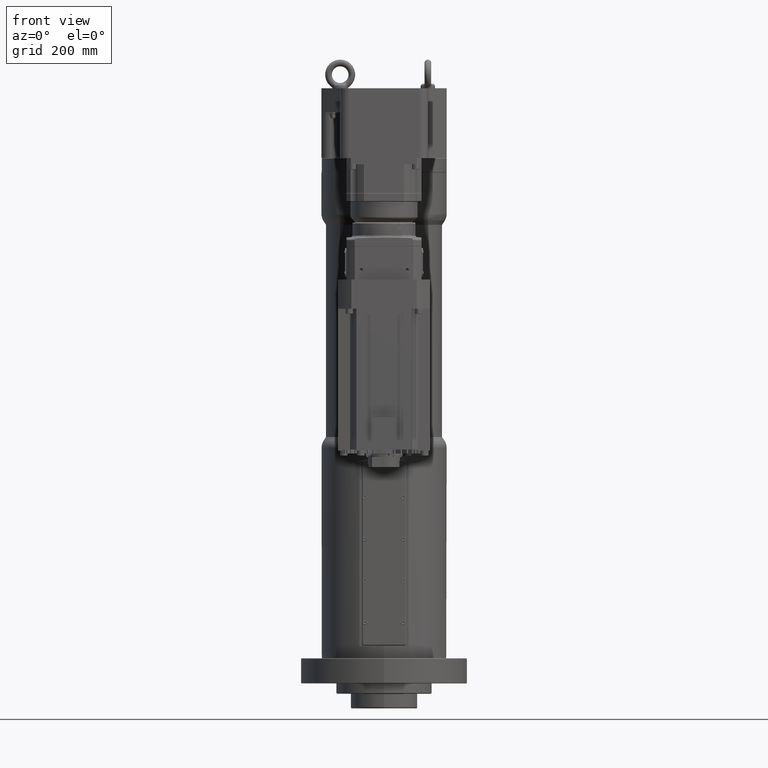
[diagram: clean part render]
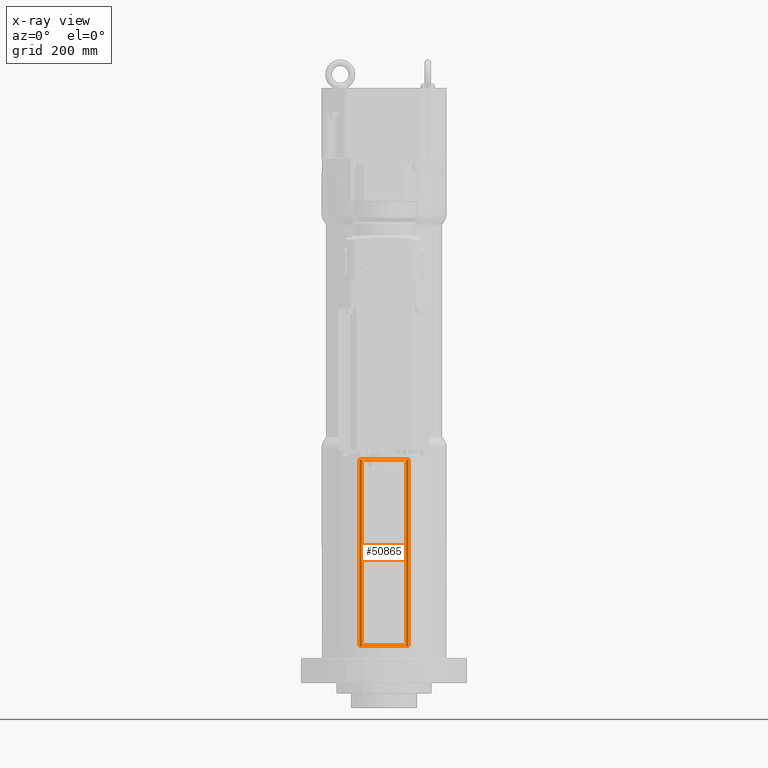
[diagram: x-ray — body ghosted, one internal face saturated and labeled with its STEP entity id]
A machine part, front view, then the same camera in x-ray: the body is ghosted and one INTERNAL B-rep face — a face not visible from any outside direction — is saturated and labeled: STEP entity #50865.
In plain terms, the highlighted planar face has unit normal (-0, -1, -0).
Its self-contained STEP definition (entity closure, byte-faithful):
#838=FACE_BOUND('',#10706,.T.);
#6085=PLANE('',#53952);
#7863=FACE_OUTER_BOUND('',#10705,.T.);
#10705=EDGE_LOOP('',(#35972,#35973,#35974,#35975));
#10706=EDGE_LOOP('',(#35976,#35977,#35978,#35979,#35980,#35981,#35982,#35983));
#13936=LINE('',#72475,#18343);
#13937=LINE('',#72477,#18344);
#13938=LINE('',#72479,#18345);
#13939=LINE('',#72480,#18346);
#13940=LINE('',#72483,#18347);
#13941=LINE('',#72485,#18348);
#13942=LINE('',#72487,#18349);
#13943=LINE('',#72489,#18350);
#13944=LINE('',#72491,#18351);
#13945=LINE('',#72493,#18352);
#13946=LINE('',#72495,#18353);
#13947=LINE('',#72496,#18354);
#18343=VECTOR('',#58916,10.);
#18344=VECTOR('',#58917,10.);
#18345=VECTOR('',#58918,10.);
#18346=VECTOR('',#58919,10.);
#18347=VECTOR('',#58920,10.);
#18348=VECTOR('',#58921,10.);
#18349=VECTOR('',#58922,10.);
#18350=VECTOR('',#58923,10.);
#18351=VECTOR('',#58924,10.);
#18352=VECTOR('',#58925,10.);
#18353=VECTOR('',#58926,10.);
#18354=VECTOR('',#58927,10.);
#23467=VERTEX_POINT('',#72473);
#23468=VERTEX_POINT('',#72474);
#23469=VERTEX_POINT('',#72476);
#23470=VERTEX_POINT('',#72478);
#23471=VERTEX_POINT('',#72481);
#23472=VERTEX_POINT('',#72482);
#23473=VERTEX_POINT('',#72484);
#23474=VERTEX_POINT('',#72486);
#23475=VERTEX_POINT('',#72488);
#23476=VERTEX_POINT('',#72490);
#23477=VERTEX_POINT('',#72492);
#23478=VERTEX_POINT('',#72494);
#28438=EDGE_CURVE('',#23467,#23468,#13936,.T.);
#28439=EDGE_CURVE('',#23469,#23467,#13937,.T.);
#28440=EDGE_CURVE('',#23470,#23469,#13938,.T.);
#28441=EDGE_CURVE('',#23468,#23470,#13939,.T.);
#28442=EDGE_CURVE('',#23471,#23472,#13940,.T.);
#28443=EDGE_CURVE('',#23473,#23471,#13941,.T.);
#28444=EDGE_CURVE('',#23474,#23473,#13942,.T.);
#28445=EDGE_CURVE('',#23475,#23474,#13943,.T.);
#28446=EDGE_CURVE('',#23476,#23475,#13944,.T.);
#28447=EDGE_CURVE('',#23477,#23476,#13945,.T.);
#28448=EDGE_CURVE('',#23478,#23477,#13946,.T.);
#28449=EDGE_CURVE('',#23472,#23478,#13947,.T.);
#35972=ORIENTED_EDGE('',*,*,#28438,.F.);
#35973=ORIENTED_EDGE('',*,*,#28439,.F.);
#35974=ORIENTED_EDGE('',*,*,#28440,.F.);
#35975=ORIENTED_EDGE('',*,*,#28441,.F.);
#35976=ORIENTED_EDGE('',*,*,#28442,.F.);
#35977=ORIENTED_EDGE('',*,*,#28443,.F.);
#35978=ORIENTED_EDGE('',*,*,#28444,.F.);
#35979=ORIENTED_EDGE('',*,*,#28445,.F.);
#35980=ORIENTED_EDGE('',*,*,#28446,.F.);
#35981=ORIENTED_EDGE('',*,*,#28447,.F.);
#35982=ORIENTED_EDGE('',*,*,#28448,.F.);
#35983=ORIENTED_EDGE('',*,*,#28449,.F.);
#50865=ADVANCED_FACE('',(#7863,#838),#6085,.F.);
#53952=AXIS2_PLACEMENT_3D('',#72472,#58914,#58915);
#58914=DIRECTION('center_axis',(-1.03537993810258E-30,-1.,-3.18629029488834E-16));
#58915=DIRECTION('ref_axis',(3.29902104829834E-46,3.18629029488834E-16,
-1.));
#58916=DIRECTION('',(0.,0.,1.));
#58917=DIRECTION('',(1.,-1.03537993810258E-30,0.));
#58918=DIRECTION('',(0.,0.,-1.));
#58919=DIRECTION('',(-1.,1.03537993810258E-30,0.));
#58920=DIRECTION('',(0.70710678118655,4.55568767072696E-18,0.707106781186545));
#58921=DIRECTION('',(2.88628292937486E-16,-3.26622838114428E-16,1.));
#58922=DIRECTION('',(-0.707106781186547,-4.66470135112941E-16,0.707106781186548));
#58923=DIRECTION('',(-1.,-3.33065553404303E-16,3.98839111632215E-16));
#58924=DIRECTION('',(-0.707106781186546,-4.5556876707238E-18,-0.707106781186549));
#58925=DIRECTION('',(-8.57203447348247E-18,3.26622838114428E-16,-1.));
#58926=DIRECTION('',(0.707106781186559,4.66470135112941E-16,-0.707106781186536));
#58927=DIRECTION('',(1.,3.33065553404303E-16,-3.98839111632216E-16));
#72472=CARTESIAN_POINT('Origin',(1.42882431458156E-28,138.,535.5));
#72473=CARTESIAN_POINT('',(58.7877538267961,138.,89.5));
#72474=CARTESIAN_POINT('',(58.7877538267964,138.,535.5));
#72475=CARTESIAN_POINT('',(58.7877538267962,138.,312.320508075689));
#72476=CARTESIAN_POINT('',(-58.7877538267961,138.,89.5));
#72477=CARTESIAN_POINT('',(1.42882431458156E-28,138.,89.5));
#72478=CARTESIAN_POINT('',(-58.7877538267964,138.,535.5));
#72479=CARTESIAN_POINT('',(-58.7877538267962,138.,312.320508075689));
#72480=CARTESIAN_POINT('',(1.42882431458156E-28,138.,535.5));
#72481=CARTESIAN_POINT('',(-52.9999999999997,138.,531.500000000001));
#72482=CARTESIAN_POINT('',(-49.9999999999997,138.,534.500000000001));
#72483=CARTESIAN_POINT('',(-93.7499999999996,138.,490.750000000002));
#72484=CARTESIAN_POINT('',(-52.9999999999998,138.,93.5000000000012));
#72485=CARTESIAN_POINT('',(-52.9999999999998,138.,201.500000000001));
#72486=CARTESIAN_POINT('',(-49.9999999999998,138.,90.5000000000012));
#72487=CARTESIAN_POINT('',(-93.7499999999998,138.,134.250000000001));
#72488=CARTESIAN_POINT('',(50.0000000000002,138.,90.5000000000012));
#72489=CARTESIAN_POINT('',(26.5000000000002,138.,90.5000000000012));
#72490=CARTESIAN_POINT('',(53.0000000000002,138.,93.5000000000012));
#72491=CARTESIAN_POINT('',(93.7500000000003,138.,134.250000000002));
#72492=CARTESIAN_POINT('',(53.0000000000002,138.,531.500000000001));
#72493=CARTESIAN_POINT('',(53.0000000000002,138.,423.500000000001));
#72494=CARTESIAN_POINT('',(50.0000000000002,138.,534.500000000001));
#72495=CARTESIAN_POINT('',(93.7499999999998,138.,490.750000000003));
#72496=CARTESIAN_POINT('',(-26.4999999999997,138.,534.500000000001));